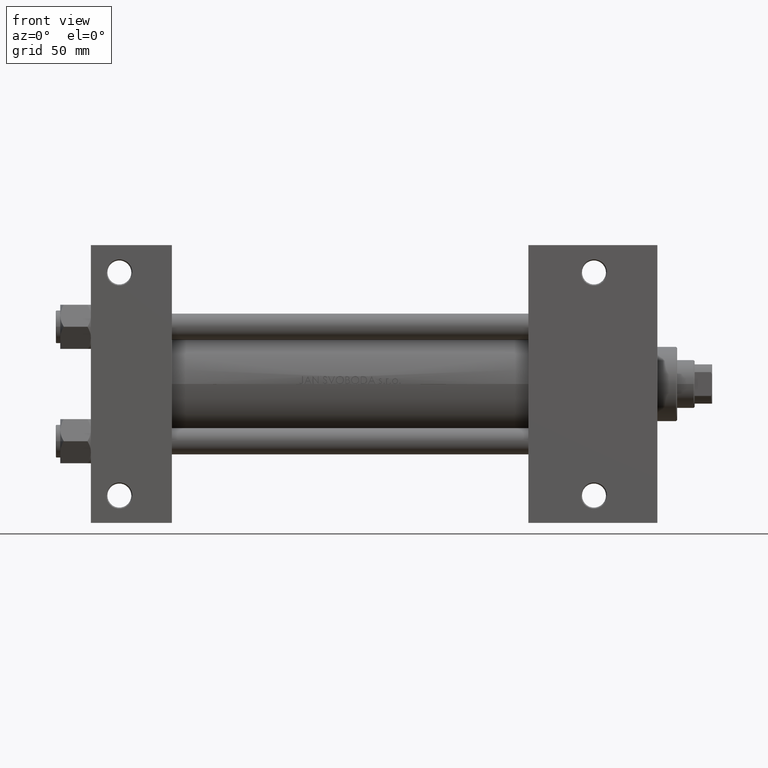
[diagram: clean part render]
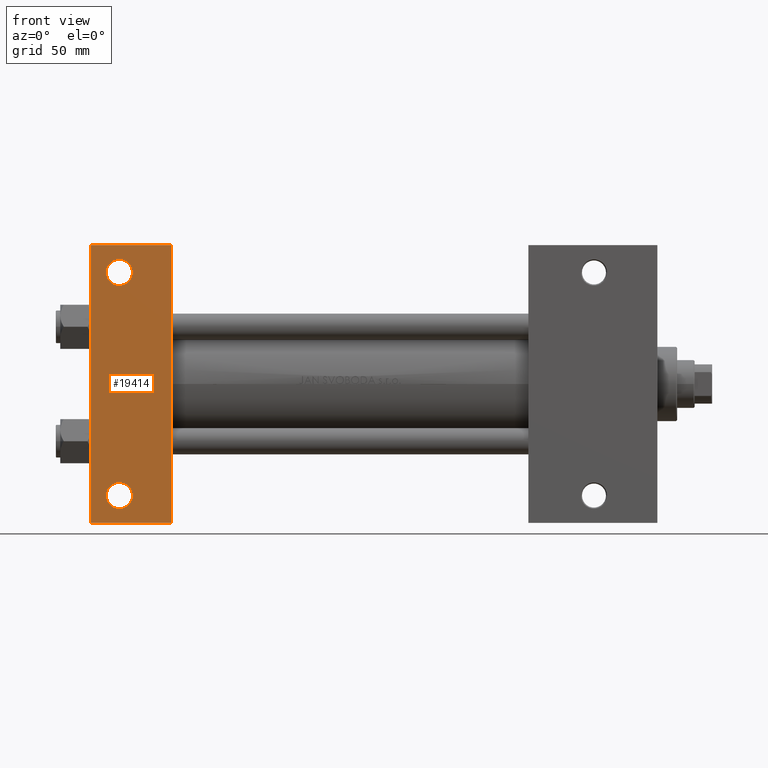
[diagram: same view with one face highlighted and labeled with its STEP entity id]
A machine part, front view. The second image highlights one B-rep face of the part: STEP entity #19414.
In plain terms, the highlighted planar face has unit normal (0, -1, -0).
Its self-contained STEP definition (entity closure, byte-faithful):
#830 = CARTESIAN_POINT ( 'NONE',  ( 37.00000000000001421, 63.50000000000000000, -37.50000000000002132 ) ) ;
#1006 = EDGE_LOOP ( 'NONE', ( #19226, #21175 ) ) ;
#2011 = VERTEX_POINT ( 'NONE', #27779 ) ;
#2157 = DIRECTION ( 'NONE',  ( 0.000000000000000000, 1.000000000000000000, 0.000000000000000000 ) ) ;
#2952 = DIRECTION ( 'NONE',  ( 0.000000000000000000, 1.000000000000000000, 0.000000000000000000 ) ) ;
#3243 = CIRCLE ( 'NONE', #36271, 5.999500000000046462 ) ;
#5222 = ORIENTED_EDGE ( 'NONE', *, *, #20237, .T. ) ;
#5754 = DIRECTION ( 'NONE',  ( 0.000000000000000000, -1.000000000000000000, -9.251858538542972814E-17 ) ) ;
#5995 = CARTESIAN_POINT ( 'NONE',  ( 12.99999999999999822, 50.99999999999996447, -37.50000000000000000 ) ) ;
#6056 = EDGE_LOOP ( 'NONE', ( #37402, #5222 ) ) ;
#6211 = EDGE_LOOP ( 'NONE', ( #19000, #12388, #46852, #21629 ) ) ;
#6954 = DIRECTION ( 'NONE',  ( -0.000000000000000000, -9.251858538542972814E-17, 1.000000000000000000 ) ) ;
#7151 = VECTOR ( 'NONE', #5754, 1000.000000000000000 ) ;
#9288 = PLANE ( 'NONE',  #11684 ) ;
#9745 = DIRECTION ( 'NONE',  ( -0.000000000000000000, -9.251858538542972814E-17, 1.000000000000000000 ) ) ;
#10351 = VERTEX_POINT ( 'NONE', #38585 ) ;
#11000 = CARTESIAN_POINT ( 'NONE',  ( 1.595073532467135441E-14, 63.50000000000000000, -37.50000000000002132 ) ) ;
#11684 = AXIS2_PLACEMENT_3D ( 'NONE', #21082, #12911, #12668 ) ;
#12374 = CARTESIAN_POINT ( 'NONE',  ( 18.99950000000004380, -51.00000000000002842, -37.50000000000000711 ) ) ;
#12388 = ORIENTED_EDGE ( 'NONE', *, *, #15583, .T. ) ;
#12668 = DIRECTION ( 'NONE',  ( 0.000000000000000000, 1.000000000000000000, 9.251858538542972814E-17 ) ) ;
#12911 = DIRECTION ( 'NONE',  ( 0.000000000000000000, 9.251858538542972814E-17, -1.000000000000000000 ) ) ;
#13226 = DIRECTION ( 'NONE',  ( -0.000000000000000000, -9.251858538542972814E-17, 1.000000000000000000 ) ) ;
#13628 = FACE_BOUND ( 'NONE', #1006, .T. ) ;
#13804 = CARTESIAN_POINT ( 'NONE',  ( 3.977209754999747208E-16, -63.50000000000000000, -37.49999999999999289 ) ) ;
#14238 = LINE ( 'NONE', #21457, #44236 ) ;
#14255 = CIRCLE ( 'NONE', #25020, 5.999500000000046462 ) ;
#14323 = DIRECTION ( 'NONE',  ( 0.000000000000000000, 1.000000000000000000, 0.000000000000000000 ) ) ;
#15069 = DIRECTION ( 'NONE',  ( 0.000000000000000000, -1.000000000000000000, -9.251858538542972814E-17 ) ) ;
#15583 = EDGE_CURVE ( 'NONE', #21381, #30670, #25453, .T. ) ;
#17970 = CARTESIAN_POINT ( 'NONE',  ( 0.000000000000000000, 37.49999999999999289, -37.50000000000000000 ) ) ;
#18346 = CARTESIAN_POINT ( 'NONE',  ( 12.99999999999999822, 50.99999999999996447, -37.50000000000000000 ) ) ;
#18653 = AXIS2_PLACEMENT_3D ( 'NONE', #45679, #13226, #2157 ) ;
#18835 = VERTEX_POINT ( 'NONE', #12374 ) ;
#18997 = VERTEX_POINT ( 'NONE', #13804 ) ;
#19000 = ORIENTED_EDGE ( 'NONE', *, *, #34298, .F. ) ;
#19226 = ORIENTED_EDGE ( 'NONE', *, *, #31746, .T. ) ;
#19414 = ADVANCED_FACE ( 'NONE', ( #35039, #13628, #38872 ), #9288, .T. ) ;
#20195 = LINE ( 'NONE', #34869, #7151 ) ;
#20237 = EDGE_CURVE ( 'NONE', #21870, #2011, #3243, .T. ) ;
#21082 = CARTESIAN_POINT ( 'NONE',  ( 37.00000000000000000, 37.49999999999999289, -37.50000000000000000 ) ) ;
#21175 = ORIENTED_EDGE ( 'NONE', *, *, #22327, .T. ) ;
#21381 = VERTEX_POINT ( 'NONE', #31723 ) ;
#21388 = EDGE_CURVE ( 'NONE', #30670, #34562, #20195, .T. ) ;
#21457 = CARTESIAN_POINT ( 'NONE',  ( 3.977209754999747208E-16, -63.50000000000000000, -37.49999999999999289 ) ) ;
#21629 = ORIENTED_EDGE ( 'NONE', *, *, #32581, .T. ) ;
#21870 = VERTEX_POINT ( 'NONE', #31135 ) ;
#22062 = DIRECTION ( 'NONE',  ( 1.000000000000000000, 0.000000000000000000, 0.000000000000000000 ) ) ;
#22327 = EDGE_CURVE ( 'NONE', #18835, #10351, #39388, .T. ) ;
#23675 = VECTOR ( 'NONE', #22062, 1000.000000000000000 ) ;
#25020 = AXIS2_PLACEMENT_3D ( 'NONE', #32836, #9745, #14323 ) ;
#25226 = AXIS2_PLACEMENT_3D ( 'NONE', #18346, #32291, #2952 ) ;
#25453 = LINE ( 'NONE', #11000, #23675 ) ;
#27779 = CARTESIAN_POINT ( 'NONE',  ( 7.000499999999950873, 50.99999999999996447, -37.50000000000000000 ) ) ;
#28151 = VECTOR ( 'NONE', #15069, 1000.000000000000000 ) ;
#29805 = CIRCLE ( 'NONE', #25226, 5.999500000000046462 ) ;
#30670 = VERTEX_POINT ( 'NONE', #830 ) ;
#31135 = CARTESIAN_POINT ( 'NONE',  ( 18.99950000000004380, 50.99999999999996447, -37.50000000000000000 ) ) ;
#31723 = CARTESIAN_POINT ( 'NONE',  ( 1.595073532467135441E-14, 63.50000000000000000, -37.50000000000002132 ) ) ;
#31746 = EDGE_CURVE ( 'NONE', #10351, #18835, #14255, .T. ) ;
#32291 = DIRECTION ( 'NONE',  ( -0.000000000000000000, -9.251858538542972814E-17, 1.000000000000000000 ) ) ;
#32581 = EDGE_CURVE ( 'NONE', #34562, #18997, #14238, .T. ) ;
#32836 = CARTESIAN_POINT ( 'NONE',  ( 12.99999999999999822, -51.00000000000002842, -37.50000000000000711 ) ) ;
#33119 = LINE ( 'NONE', #17970, #28151 ) ;
#34298 = EDGE_CURVE ( 'NONE', #21381, #18997, #33119, .T. ) ;
#34562 = VERTEX_POINT ( 'NONE', #44330 ) ;
#34869 = CARTESIAN_POINT ( 'NONE',  ( 37.00000000000000000, 37.49999999999999289, -37.50000000000000000 ) ) ;
#35039 = FACE_BOUND ( 'NONE', #6056, .T. ) ;
#36271 = AXIS2_PLACEMENT_3D ( 'NONE', #5995, #6954, #43255 ) ;
#36940 = EDGE_CURVE ( 'NONE', #2011, #21870, #29805, .T. ) ;
#37402 = ORIENTED_EDGE ( 'NONE', *, *, #36940, .T. ) ;
#38585 = CARTESIAN_POINT ( 'NONE',  ( 7.000499999999950873, -51.00000000000002842, -37.50000000000000711 ) ) ;
#38872 = FACE_OUTER_BOUND ( 'NONE', #6211, .T. ) ;
#39388 = CIRCLE ( 'NONE', #18653, 5.999500000000046462 ) ;
#43255 = DIRECTION ( 'NONE',  ( 0.000000000000000000, 1.000000000000000000, 0.000000000000000000 ) ) ;
#44236 = VECTOR ( 'NONE', #46442, 1000.000000000000000 ) ;
#44330 = CARTESIAN_POINT ( 'NONE',  ( 37.00000000000000000, -63.50000000000000000, -37.49999999999999289 ) ) ;
#45679 = CARTESIAN_POINT ( 'NONE',  ( 12.99999999999999822, -51.00000000000002842, -37.50000000000000711 ) ) ;
#46442 = DIRECTION ( 'NONE',  ( -1.000000000000000000, -0.000000000000000000, -0.000000000000000000 ) ) ;
#46852 = ORIENTED_EDGE ( 'NONE', *, *, #21388, .T. ) ;